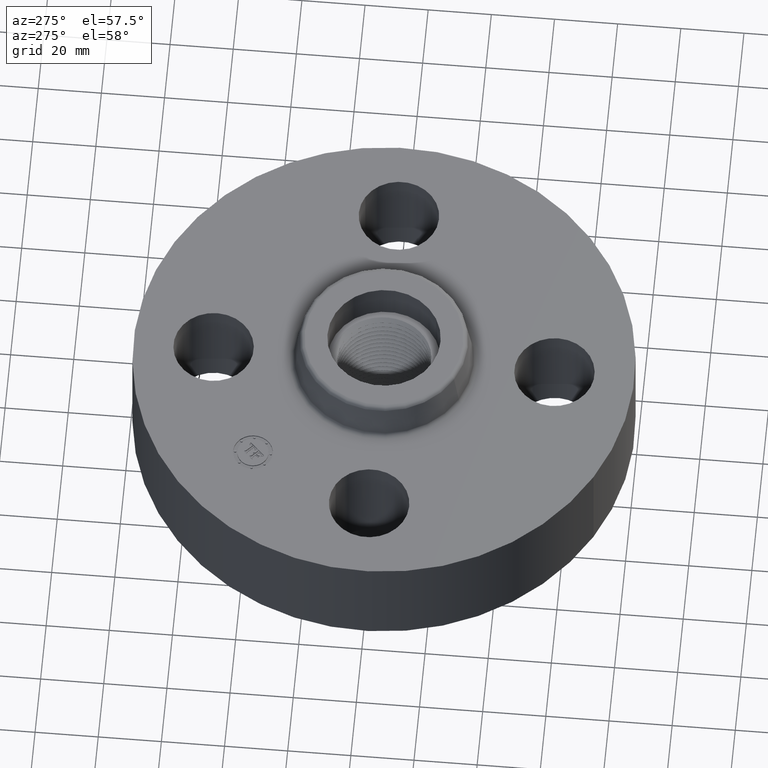
[diagram: clean part render]
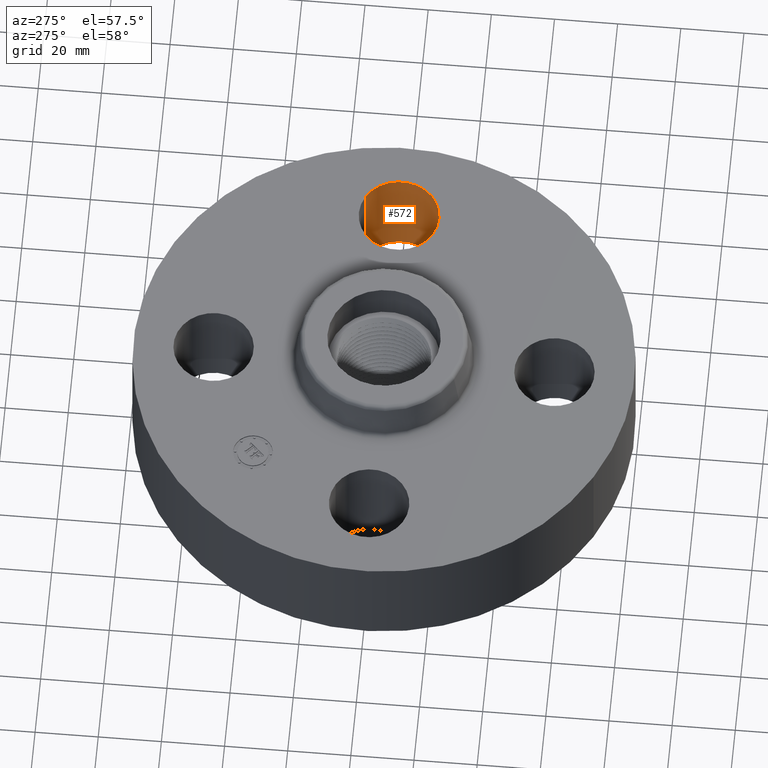
[diagram: same view with one face highlighted and labeled with its STEP entity id]
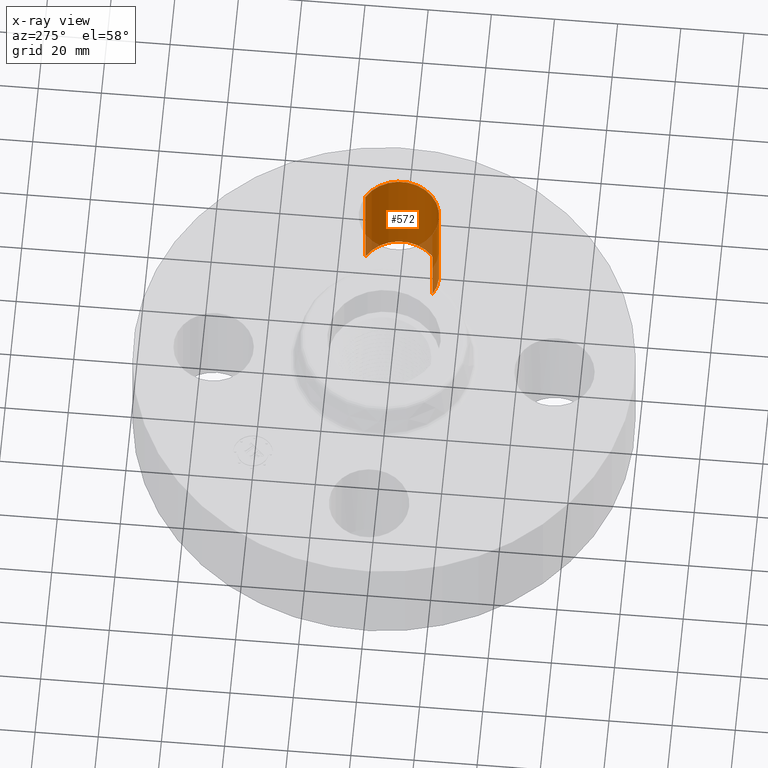
[diagram: x-ray of the same camera — body ghosted, the highlighted face saturated]
A machine part, auxiliary view. The second image highlights one B-rep face of the part: STEP entity #572.
The next image is the same camera in x-ray: the body ghosted, the highlighted face saturated — about 10% of this face is hidden behind the body in this view.
In plain terms, the highlighted cylindrical surface (partial cylindrical patch) has radius 12.7 mm, axis along (0, -0, -1).
Its self-contained STEP definition (entity closure, byte-faithful):
#511=AXIS2_PLACEMENT_3D('Cylinder Axis2P3D',#508,#509,#510) ;
#558=AXIS2_PLACEMENT_3D('Circle Axis2P3D',#556,#557,$) ;
#563=AXIS2_PLACEMENT_3D('Circle Axis2P3D',#561,#562,$) ;
#508=CARTESIAN_POINT('Axis2P3D Location',(2.12500000001,1.3011872241E-016,1.37606299213)) ;
#513=CARTESIAN_POINT('Line Origine',(1.88528723071,-0.438791280947,0.690000000003)) ;
#517=CARTESIAN_POINT('Vertex',(1.88528723071,-0.438791280947,0.)) ;
#519=CARTESIAN_POINT('Vertex',(1.88528723071,-0.438791280947,1.38000000001)) ;
#533=CARTESIAN_POINT('Vertex',(2.36471276931,0.438791280947,0.)) ;
#536=CARTESIAN_POINT('Line Origine',(2.36471276931,0.438791280947,0.690000000003)) ;
#540=CARTESIAN_POINT('Vertex',(2.36471276931,0.438791280947,1.38000000001)) ;
#556=CARTESIAN_POINT('Axis2P3D Location',(2.12500000001,1.3011872241E-016,0.)) ;
#561=CARTESIAN_POINT('Axis2P3D Location',(2.12500000001,1.3011872241E-016,1.38000000001)) ;
#509=DIRECTION('Axis2P3D Direction',(0.,-0.,-0.0393700787402)) ;
#510=DIRECTION('Axis2P3D XDirection',(0.0188750212049,0.0345504945626,-0.)) ;
#514=DIRECTION('Vector Direction',(0.,0.,-0.0393700787402)) ;
#537=DIRECTION('Vector Direction',(0.,0.,-0.0393700787402)) ;
#557=DIRECTION('Axis2P3D Direction',(0.,-0.,-0.0393700787402)) ;
#562=DIRECTION('Axis2P3D Direction',(0.,-0.,-0.0393700787402)) ;
#515=VECTOR('Line Direction',#514,0.0393700787402) ;
#538=VECTOR('Line Direction',#537,0.0393700787402) ;
#567=ORIENTED_EDGE('',*,*,#542,.F.) ;
#568=ORIENTED_EDGE('',*,*,#560,.T.) ;
#569=ORIENTED_EDGE('',*,*,#521,.T.) ;
#570=ORIENTED_EDGE('',*,*,#565,.F.) ;
#572=ADVANCED_FACE('PartBody',(#571),#512,.F.) ;
#559=CIRCLE('generated circle',#558,0.500000000002) ;
#564=CIRCLE('generated circle',#563,0.500000000002) ;
#512=CYLINDRICAL_SURFACE('generated cylinder',#511,0.500000000002) ;
#521=EDGE_CURVE('',#518,#520,#516,.F.) ;
#542=EDGE_CURVE('',#534,#541,#539,.F.) ;
#560=EDGE_CURVE('',#534,#518,#559,.T.) ;
#565=EDGE_CURVE('',#541,#520,#564,.T.) ;
#566=EDGE_LOOP('',(#567,#568,#569,#570)) ;
#571=FACE_OUTER_BOUND('',#566,.T.) ;
#516=LINE('Line',#513,#515) ;
#539=LINE('Line',#536,#538) ;
#518=VERTEX_POINT('',#517) ;
#520=VERTEX_POINT('',#519) ;
#534=VERTEX_POINT('',#533) ;
#541=VERTEX_POINT('',#540) ;